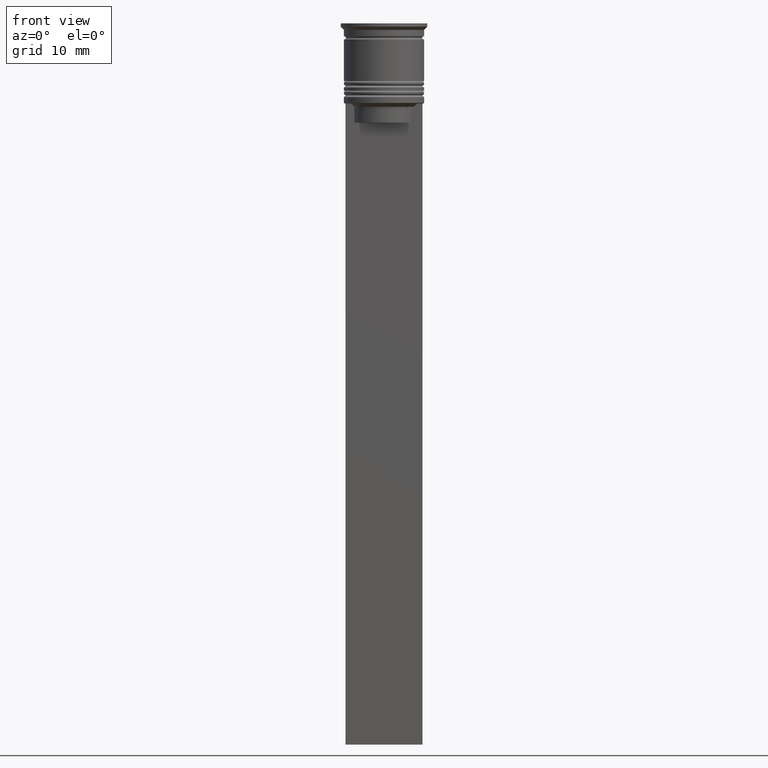
[diagram: clean part render]
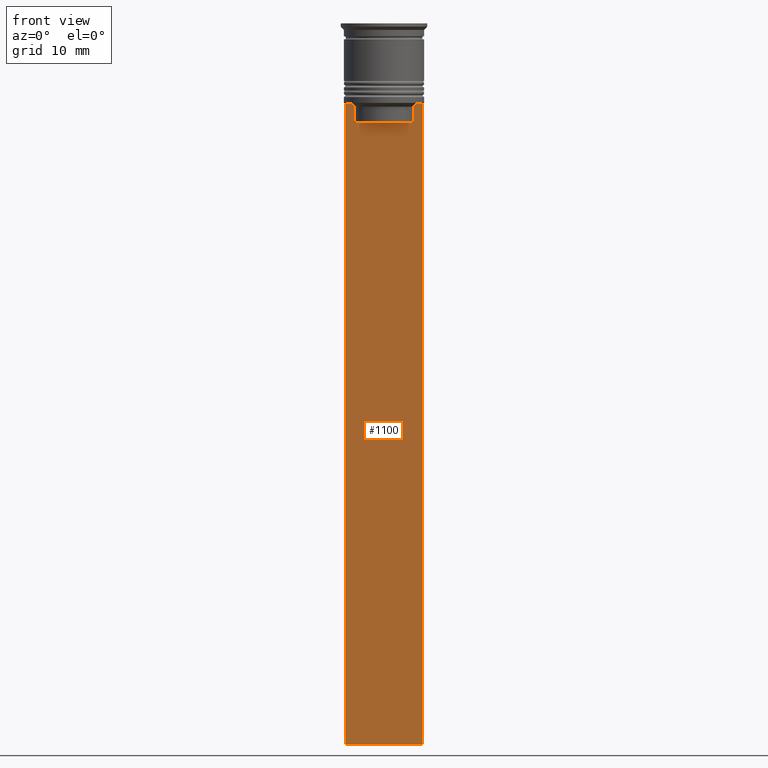
[diagram: same view with one face highlighted and labeled with its STEP entity id]
A machine part, front view. The second image highlights one B-rep face of the part: STEP entity #1100.
In plain terms, the highlighted planar face has unit normal (0, -1, -0).
Its self-contained STEP definition (entity closure, byte-faithful):
#33 = CARTESIAN_POINT ( 'NONE',  ( 6.000000000000016875, -0.5000000000000017764, -12.50000000000000000 ) ) ;
#51 = CARTESIAN_POINT ( 'NONE',  ( -4.623040125285526436, -0.5000000000000017764, -13.00000000000000178 ) ) ;
#67 = DIRECTION ( 'NONE',  ( 0.000000000000000000, 0.000000000000000000, -1.000000000000000000 ) ) ;
#76 = VERTEX_POINT ( 'NONE', #51 ) ;
#187 = EDGE_CURVE ( 'NONE', #468, #449, #1932, .T. ) ;
#192 = VERTEX_POINT ( 'NONE', #1169 ) ;
#209 = VECTOR ( 'NONE', #1799, 1000.000000000000000 ) ;
#215 = DIRECTION ( 'NONE',  ( 1.000000000000000000, 0.000000000000000000, 0.000000000000000000 ) ) ;
#238 = VECTOR ( 'NONE', #1198, 1000.000000000000000 ) ;
#299 = ORIENTED_EDGE ( 'NONE', *, *, #1952, .F. ) ;
#306 = CARTESIAN_POINT ( 'NONE',  ( 0.000000000000000000, -0.5000000000000022204, -15.50000000000000000 ) ) ;
#311 = CARTESIAN_POINT ( 'NONE',  ( 5.125670687822231564, -0.5000000000000017764, -12.50000000000000000 ) ) ;
#315 = EDGE_CURVE ( 'NONE', #1641, #2273, #1794, .T. ) ;
#332 = CARTESIAN_POINT ( 'NONE',  ( 6.000000000000016875, -0.5000000000000017764, -12.50000000000000000 ) ) ;
#337 = EDGE_CURVE ( 'NONE', #1893, #2292, #837, .T. ) ;
#365 = CARTESIAN_POINT ( 'NONE',  ( 6.000000000000016875, -0.5000000000000017764, -12.50000000000000000 ) ) ;
#376 = ORIENTED_EDGE ( 'NONE', *, *, #2101, .F. ) ;
#419 = CARTESIAN_POINT ( 'NONE',  ( -5.125670687822231564, -0.5000000000000017764, -12.50000000000000000 ) ) ;
#449 = VERTEX_POINT ( 'NONE', #1825 ) ;
#468 = VERTEX_POINT ( 'NONE', #933 ) ;
#483 = CARTESIAN_POINT ( 'NONE',  ( 6.000000000000016875, -0.5000000000000017764, -112.5000000000000000 ) ) ;
#538 = VECTOR ( 'NONE', #2127, 1000.000000000000000 ) ;
#605 = CARTESIAN_POINT ( 'NONE',  ( 4.790630799407577634, -0.5000000000000017764, -12.83338098686238915 ) ) ;
#621 = CARTESIAN_POINT ( 'NONE',  ( 4.958169719475987947, -0.5000000000000017764, -12.66670967060858111 ) ) ;
#630 = CARTESIAN_POINT ( 'NONE',  ( -5.999999999999983125, -0.5000000000000017764, -12.50000000000000000 ) ) ;
#638 = DIRECTION ( 'NONE',  ( 0.000000000000000000, 0.000000000000000000, -1.000000000000000000 ) ) ;
#744 = CARTESIAN_POINT ( 'NONE',  ( -4.623040125285526436, -0.5000000000000017764, 0.000000000000000000 ) ) ;
#810 = EDGE_CURVE ( 'NONE', #192, #2292, #1378, .T. ) ;
#822 = LINE ( 'NONE', #2293, #1388 ) ;
#837 = LINE ( 'NONE', #885, #1524 ) ;
#856 = ORIENTED_EDGE ( 'NONE', *, *, #337, .T. ) ;
#885 = CARTESIAN_POINT ( 'NONE',  ( -5.999999999999983125, -0.5000000000000017764, -0.4584054212077061097 ) ) ;
#933 = CARTESIAN_POINT ( 'NONE',  ( 4.623040125285526436, -0.5000000000000022204, -15.50000000000000000 ) ) ;
#953 = CARTESIAN_POINT ( 'NONE',  ( 5.125670687822231564, -0.5000000000000017764, -12.50000000000000000 ) ) ;
#967 = CARTESIAN_POINT ( 'NONE',  ( 4.623040125285526436, -0.5000000000000017764, -13.00000000000000178 ) ) ;
#1031 = AXIS2_PLACEMENT_3D ( 'NONE', #1516, #1875, #67 ) ;
#1058 = B_SPLINE_CURVE_WITH_KNOTS ( 'NONE', 3,
 ( #1941, #2087, #1335, #2103 ),
 .UNSPECIFIED., .F., .F.,
 ( 4, 4 ),
 ( 0.008759809102772709091, 0.009468778395565353653 ),
 .UNSPECIFIED. ) ;
#1068 = VERTEX_POINT ( 'NONE', #419 ) ;
#1100 = ADVANCED_FACE ( 'NONE', ( #1726 ), #1542, .T. ) ;
#1169 = CARTESIAN_POINT ( 'NONE',  ( 6.000000000000016875, -0.5000000000000017764, -112.5000000000000000 ) ) ;
#1198 = DIRECTION ( 'NONE',  ( -0.000000000000000000, -0.000000000000000000, 1.000000000000000000 ) ) ;
#1218 = ORIENTED_EDGE ( 'NONE', *, *, #810, .F. ) ;
#1223 = ORIENTED_EDGE ( 'NONE', *, *, #315, .F. ) ;
#1224 = ORIENTED_EDGE ( 'NONE', *, *, #1270, .F. ) ;
#1248 = DIRECTION ( 'NONE',  ( 0.000000000000000000, 0.000000000000000000, -1.000000000000000000 ) ) ;
#1252 = EDGE_LOOP ( 'NONE', ( #1464, #1224, #856, #1218, #299, #1223, #1736, #2195, #376, #1900 ) ) ;
#1270 = EDGE_CURVE ( 'NONE', #1893, #1068, #1282, .T. ) ;
#1282 = LINE ( 'NONE', #33, #1964 ) ;
#1287 = EDGE_CURVE ( 'NONE', #76, #2240, #1635, .T. ) ;
#1335 = CARTESIAN_POINT ( 'NONE',  ( -4.790630915080664742, -0.5000000000000017764, -12.83338087185995491 ) ) ;
#1378 = LINE ( 'NONE', #483, #1769 ) ;
#1388 = VECTOR ( 'NONE', #638, 1000.000000000000000 ) ;
#1428 = DIRECTION ( 'NONE',  ( -1.000000000000000000, 0.000000000000000000, 0.000000000000000000 ) ) ;
#1464 = ORIENTED_EDGE ( 'NONE', *, *, #1863, .F. ) ;
#1516 = CARTESIAN_POINT ( 'NONE',  ( 6.000000000000016875, -0.5000000000000017764, -0.4584054212077061097 ) ) ;
#1517 = CARTESIAN_POINT ( 'NONE',  ( -5.999999999999983125, -0.5000000000000017764, -112.5000000000000000 ) ) ;
#1524 = VECTOR ( 'NONE', #1248, 1000.000000000000000 ) ;
#1542 = PLANE ( 'NONE',  #1031 ) ;
#1633 = B_SPLINE_CURVE_WITH_KNOTS ( 'NONE', 3,
 ( #967, #605, #621, #953 ),
 .UNSPECIFIED., .F., .F.,
 ( 4, 4 ),
 ( 0.02203698174624552780, 0.02275222543365896383 ),
 .UNSPECIFIED. ) ;
#1635 = LINE ( 'NONE', #744, #209 ) ;
#1641 = VERTEX_POINT ( 'NONE', #311 ) ;
#1726 = FACE_OUTER_BOUND ( 'NONE', #1252, .T. ) ;
#1736 = ORIENTED_EDGE ( 'NONE', *, *, #2331, .F. ) ;
#1769 = VECTOR ( 'NONE', #1428, 1000.000000000000000 ) ;
#1794 = LINE ( 'NONE', #332, #2225 ) ;
#1799 = DIRECTION ( 'NONE',  ( 0.000000000000000000, 0.000000000000000000, -1.000000000000000000 ) ) ;
#1825 = CARTESIAN_POINT ( 'NONE',  ( 4.623040125285526436, -0.5000000000000017764, -13.00000000000000178 ) ) ;
#1863 = EDGE_CURVE ( 'NONE', #1068, #76, #1058, .T. ) ;
#1875 = DIRECTION ( 'NONE',  ( 0.000000000000000000, -1.000000000000000000, -0.000000000000000000 ) ) ;
#1893 = VERTEX_POINT ( 'NONE', #630 ) ;
#1900 = ORIENTED_EDGE ( 'NONE', *, *, #1287, .F. ) ;
#1932 = LINE ( 'NONE', #1942, #238 ) ;
#1941 = CARTESIAN_POINT ( 'NONE',  ( -5.125670687822231564, -0.5000000000000017764, -12.50000000000000000 ) ) ;
#1942 = CARTESIAN_POINT ( 'NONE',  ( 4.623040125285526436, -0.5000000000000017764, 0.000000000000000000 ) ) ;
#1952 = EDGE_CURVE ( 'NONE', #2273, #192, #822, .T. ) ;
#1954 = LINE ( 'NONE', #306, #538 ) ;
#1964 = VECTOR ( 'NONE', #215, 1000.000000000000000 ) ;
#2052 = CARTESIAN_POINT ( 'NONE',  ( -4.623040125285526436, -0.5000000000000022204, -15.50000000000000000 ) ) ;
#2087 = CARTESIAN_POINT ( 'NONE',  ( -4.958169823806760412, -0.5000000000000017764, -12.66670956677067927 ) ) ;
#2101 = EDGE_CURVE ( 'NONE', #2240, #468, #1954, .T. ) ;
#2103 = CARTESIAN_POINT ( 'NONE',  ( -4.623040125285526436, -0.5000000000000017764, -13.00000000000000178 ) ) ;
#2127 = DIRECTION ( 'NONE',  ( 1.000000000000000000, 0.000000000000000000, 0.000000000000000000 ) ) ;
#2195 = ORIENTED_EDGE ( 'NONE', *, *, #187, .F. ) ;
#2225 = VECTOR ( 'NONE', #2316, 1000.000000000000000 ) ;
#2240 = VERTEX_POINT ( 'NONE', #2052 ) ;
#2273 = VERTEX_POINT ( 'NONE', #365 ) ;
#2292 = VERTEX_POINT ( 'NONE', #1517 ) ;
#2293 = CARTESIAN_POINT ( 'NONE',  ( 6.000000000000016875, -0.5000000000000017764, -0.4584054212077061097 ) ) ;
#2316 = DIRECTION ( 'NONE',  ( 1.000000000000000000, 0.000000000000000000, 0.000000000000000000 ) ) ;
#2331 = EDGE_CURVE ( 'NONE', #449, #1641, #1633, .T. ) ;